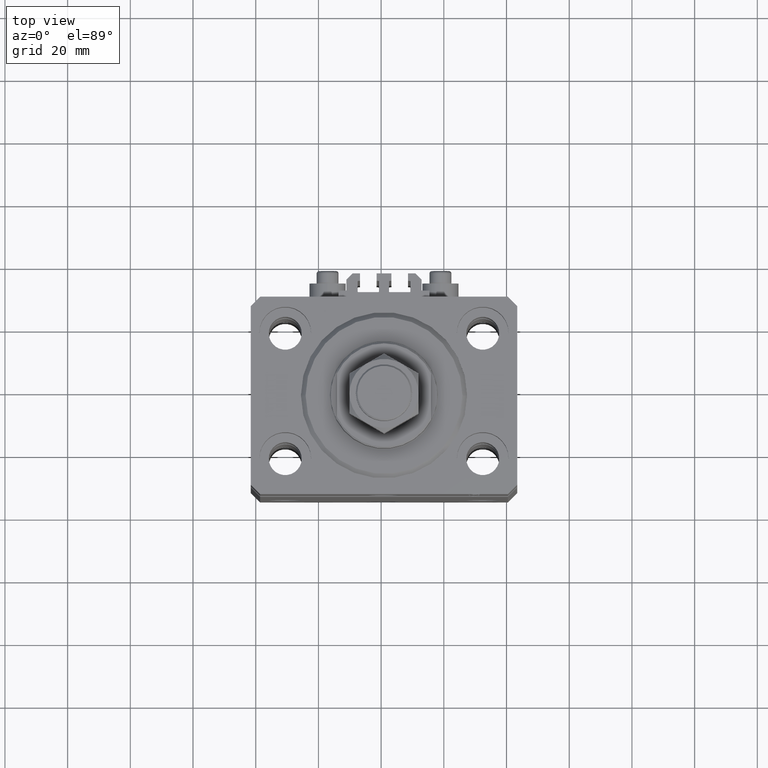
[diagram: clean part render]
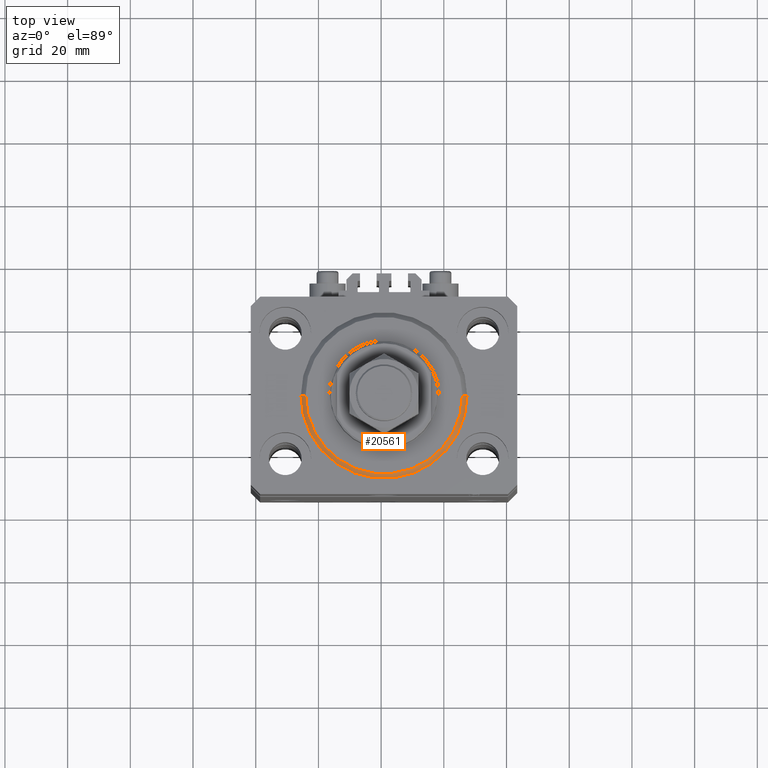
[diagram: same view with one face highlighted and labeled with its STEP entity id]
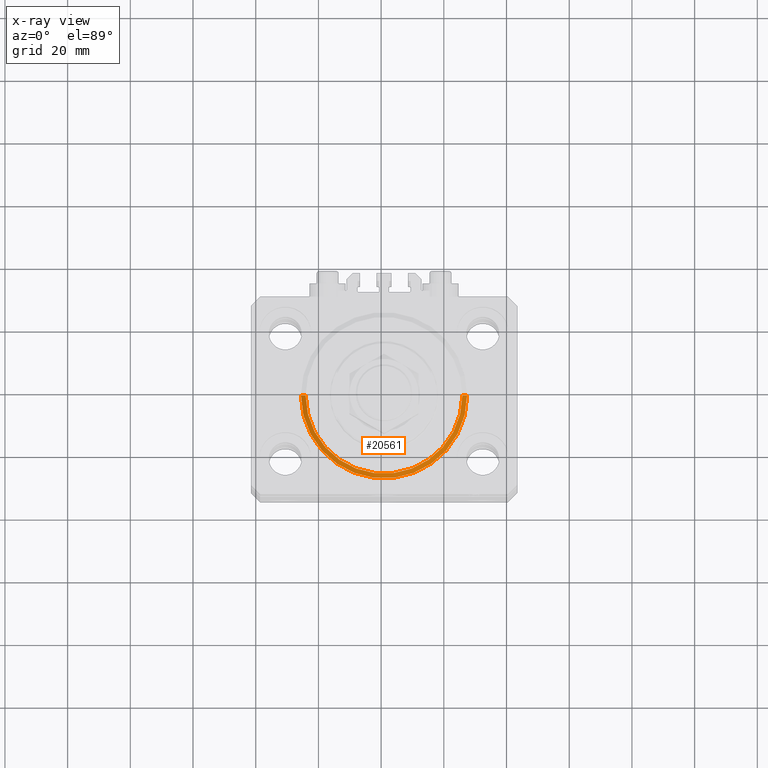
[diagram: x-ray of the same camera — body ghosted, the highlighted face saturated]
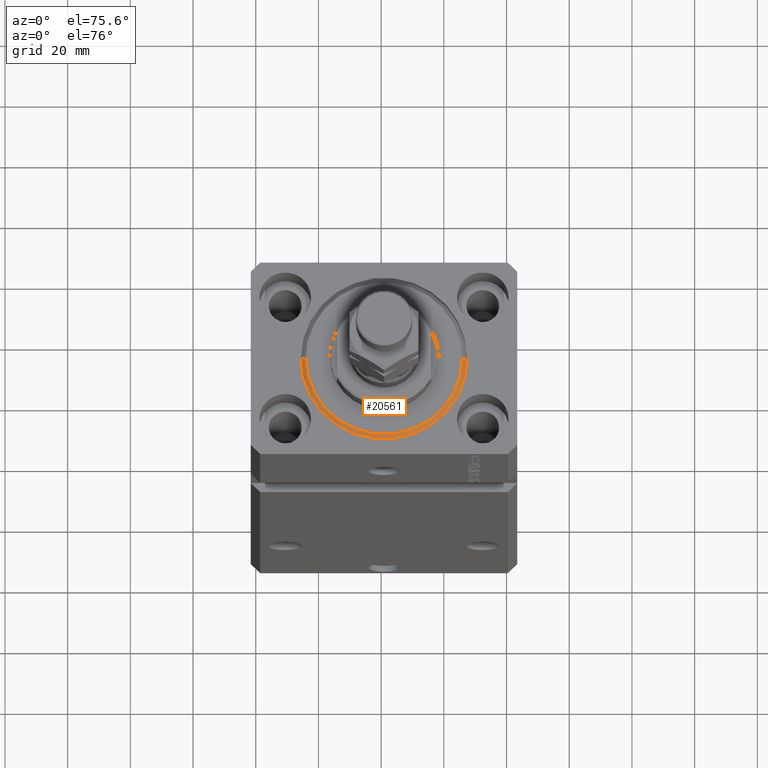
[diagram: same view with one face highlighted and labeled with its STEP entity id]
A machine part, top view. The second image highlights one B-rep face of the part: STEP entity #20561.
The next image is the same camera in x-ray: the body ghosted, the highlighted face saturated — about 0% of this face is hidden behind the body in this view.
A second angle (auxiliary view) of the same face is appended — the face is thin or edge-on in the first view.
In plain terms, the highlighted conical surface has half-angle 45 deg.
Its self-contained STEP definition (entity closure, byte-faithful):
#840 = VECTOR ( 'NONE', #13040, 1000.000000000000000 ) ;
#2318 = DIRECTION ( 'NONE',  ( -0.000000000000000000, -0.000000000000000000, 1.000000000000000000 ) ) ;
#3793 = DIRECTION ( 'NONE',  ( -0.000000000000000000, -0.000000000000000000, 1.000000000000000000 ) ) ;
#3942 = CIRCLE ( 'NONE', #11981, 26.50000000000000355 ) ;
#6348 = AXIS2_PLACEMENT_3D ( 'NONE', #42521, #3793, #19133 ) ;
#6463 = CARTESIAN_POINT ( 'NONE',  ( -26.50000000000000355, 0.000000000000000000, 1.500000000000018652 ) ) ;
#10866 = DIRECTION ( 'NONE',  ( 1.000000000000000000, 0.000000000000000000, 0.000000000000000000 ) ) ;
#11213 = VERTEX_POINT ( 'NONE', #6463 ) ;
#11803 = EDGE_CURVE ( 'NONE', #23976, #27793, #44773, .T. ) ;
#11981 = AXIS2_PLACEMENT_3D ( 'NONE', #13632, #2318, #10866 ) ;
#13040 = DIRECTION ( 'NONE',  ( -0.7071067811865483499, 8.659560562354942719E-17, 0.7071067811865466846 ) ) ;
#13632 = CARTESIAN_POINT ( 'NONE',  ( 0.000000000000000000, 0.000000000000000000, 1.500000000000018652 ) ) ;
#13759 = CIRCLE ( 'NONE', #26638, 24.99999999999998224 ) ;
#15133 = ORIENTED_EDGE ( 'NONE', *, *, #48945, .F. ) ;
#17431 = EDGE_CURVE ( 'NONE', #47415, #11213, #31428, .T. ) ;
#18675 = DIRECTION ( 'NONE',  ( -0.000000000000000000, -0.000000000000000000, -1.000000000000000000 ) ) ;
#18891 = FACE_OUTER_BOUND ( 'NONE', #29373, .T. ) ;
#19133 = DIRECTION ( 'NONE',  ( 1.000000000000000000, 0.000000000000000000, 0.000000000000000000 ) ) ;
#20561 = ADVANCED_FACE ( 'NONE', ( #18891 ), #47298, .T. ) ;
#23878 = CARTESIAN_POINT ( 'NONE',  ( -26.50000000000000355, 3.245314017740486554E-15, 1.500000000000018652 ) ) ;
#23976 = VERTEX_POINT ( 'NONE', #25544 ) ;
#25030 = EDGE_CURVE ( 'NONE', #11213, #27793, #3942, .T. ) ;
#25544 = CARTESIAN_POINT ( 'NONE',  ( 24.99999999999998224, 0.000000000000000000, 0.000000000000000000 ) ) ;
#26638 = AXIS2_PLACEMENT_3D ( 'NONE', #34024, #18675, #45596 ) ;
#27793 = VERTEX_POINT ( 'NONE', #47902 ) ;
#29373 = EDGE_LOOP ( 'NONE', ( #46735, #15133, #42296, #42426 ) ) ;
#31428 = LINE ( 'NONE', #23878, #840 ) ;
#33939 = DIRECTION ( 'NONE',  ( 0.7071067811865483499, 0.000000000000000000, 0.7071067811865466846 ) ) ;
#34024 = CARTESIAN_POINT ( 'NONE',  ( 0.000000000000000000, 0.000000000000000000, 0.000000000000000000 ) ) ;
#38953 = VECTOR ( 'NONE', #33939, 1000.000000000000000 ) ;
#39946 = CARTESIAN_POINT ( 'NONE',  ( -24.99999999999998224, 3.153465507804433615E-15, 0.000000000000000000 ) ) ;
#40993 = CARTESIAN_POINT ( 'NONE',  ( 26.50000000000000355, 0.000000000000000000, 1.500000000000018652 ) ) ;
#42296 = ORIENTED_EDGE ( 'NONE', *, *, #11803, .T. ) ;
#42426 = ORIENTED_EDGE ( 'NONE', *, *, #25030, .F. ) ;
#42521 = CARTESIAN_POINT ( 'NONE',  ( 0.000000000000000000, 0.000000000000000000, 1.500000000000018652 ) ) ;
#44773 = LINE ( 'NONE', #40993, #38953 ) ;
#45596 = DIRECTION ( 'NONE',  ( 1.000000000000000000, 0.000000000000000000, 0.000000000000000000 ) ) ;
#46735 = ORIENTED_EDGE ( 'NONE', *, *, #17431, .F. ) ;
#47298 = CONICAL_SURFACE ( 'NONE', #6348, 26.50000000000000355, 0.7853981633974495002 ) ;
#47415 = VERTEX_POINT ( 'NONE', #39946 ) ;
#47902 = CARTESIAN_POINT ( 'NONE',  ( 26.50000000000000355, 3.245314017740486554E-15, 1.500000000000018652 ) ) ;
#48945 = EDGE_CURVE ( 'NONE', #23976, #47415, #13759, .T. ) ;